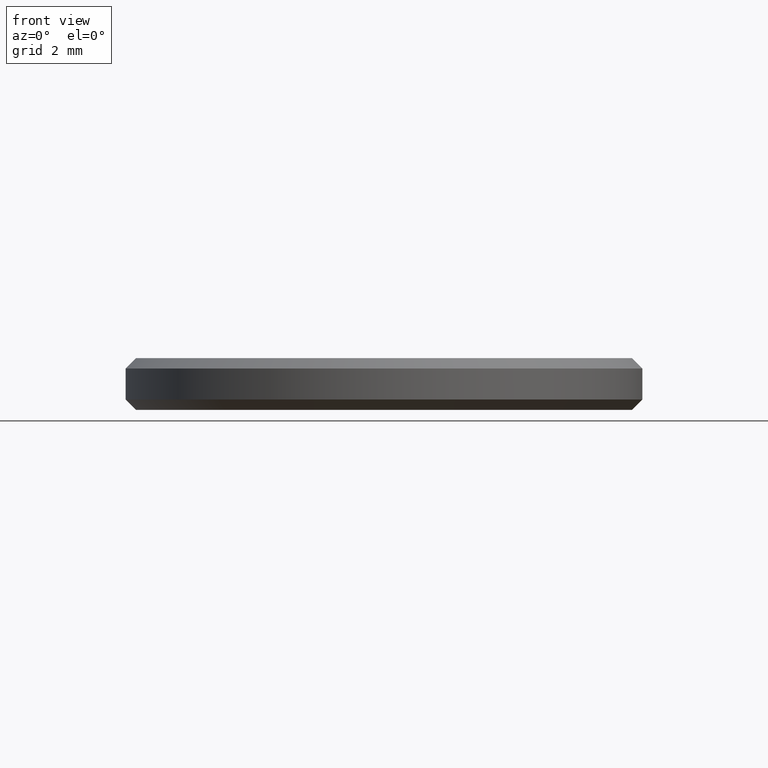
[diagram: clean part render]
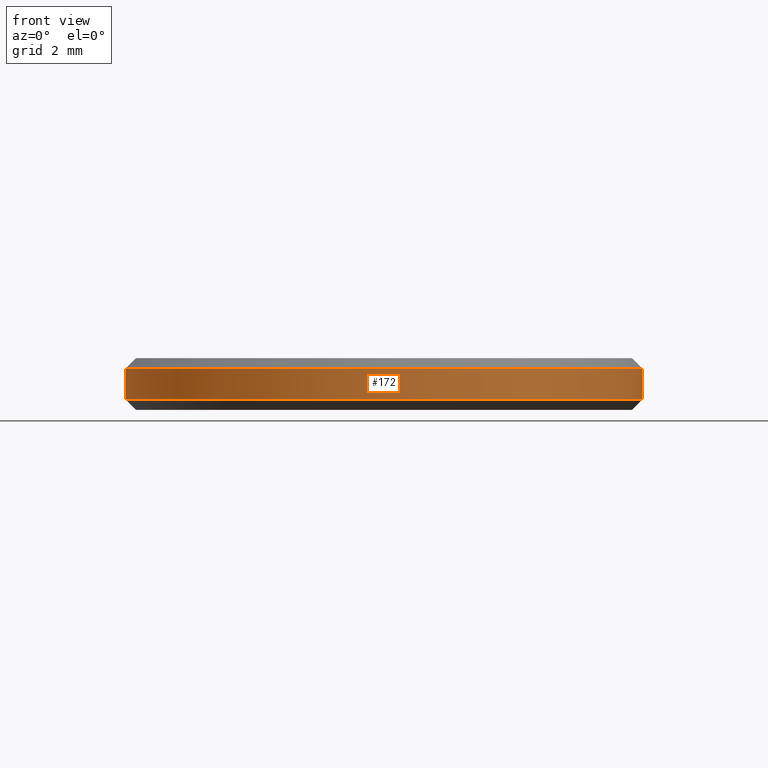
[diagram: same view with one face highlighted and labeled with its STEP entity id]
A machine part, front view. The second image highlights one B-rep face of the part: STEP entity #172.
In plain terms, the highlighted cylindrical surface (partial cylindrical patch) has radius 5 mm, axis along (-0, -0, -1).
Its self-contained STEP definition (entity closure, byte-faithful):
#3 = AXIS2_PLACEMENT_3D ( 'NONE', #187, #182, #12 ) ;
#12 = DIRECTION ( 'NONE',  ( 1.000000000000000000, 0.000000000000000000, 0.000000000000000000 ) ) ;
#18 = VECTOR ( 'NONE', #201, 1000.000000000000000 ) ;
#24 = ORIENTED_EDGE ( 'NONE', *, *, #195, .F. ) ;
#26 = VERTEX_POINT ( 'NONE', #173 ) ;
#48 = VERTEX_POINT ( 'NONE', #198 ) ;
#50 = AXIS2_PLACEMENT_3D ( 'NONE', #217, #212, #204 ) ;
#57 = CARTESIAN_POINT ( 'NONE',  ( 5.000000000000000000, 6.123233995736766282E-16, 1.000000000000000000 ) ) ;
#61 = DIRECTION ( 'NONE',  ( 0.000000000000000000, 0.000000000000000000, -1.000000000000000000 ) ) ;
#65 = ORIENTED_EDGE ( 'NONE', *, *, #239, .T. ) ;
#73 = DIRECTION ( 'NONE',  ( 1.000000000000000000, 0.000000000000000000, 0.000000000000000000 ) ) ;
#75 = FACE_OUTER_BOUND ( 'NONE', #191, .T. ) ;
#78 = ORIENTED_EDGE ( 'NONE', *, *, #224, .T. ) ;
#98 = AXIS2_PLACEMENT_3D ( 'NONE', #163, #61, #73 ) ;
#122 = VERTEX_POINT ( 'NONE', #126 ) ;
#126 = CARTESIAN_POINT ( 'NONE',  ( 5.000000000000000000, 6.123233995736766282E-16, 0.8000000000000012657 ) ) ;
#128 = DIRECTION ( 'NONE',  ( -0.000000000000000000, -0.000000000000000000, -1.000000000000000000 ) ) ;
#133 = CARTESIAN_POINT ( 'NONE',  ( -5.000000000000000000, 0.000000000000000000, 1.000000000000000000 ) ) ;
#143 = CIRCLE ( 'NONE', #98, 5.000000000000000000 ) ;
#147 = VECTOR ( 'NONE', #128, 1000.000000000000000 ) ;
#148 = CYLINDRICAL_SURFACE ( 'NONE', #50, 5.000000000000000000 ) ;
#150 = LINE ( 'NONE', #133, #18 ) ;
#155 = CIRCLE ( 'NONE', #3, 5.000000000000000000 ) ;
#156 = VERTEX_POINT ( 'NONE', #165 ) ;
#163 = CARTESIAN_POINT ( 'NONE',  ( 0.000000000000000000, 0.000000000000000000, 0.8000000000000012657 ) ) ;
#165 = CARTESIAN_POINT ( 'NONE',  ( 5.000000000000000000, 6.123233995736766282E-16, 0.1999999999999996503 ) ) ;
#172 = ADVANCED_FACE ( 'NONE', ( #75 ), #148, .T. ) ;
#173 = CARTESIAN_POINT ( 'NONE',  ( -5.000000000000000000, 0.000000000000000000, 0.8000000000000012657 ) ) ;
#176 = ORIENTED_EDGE ( 'NONE', *, *, #222, .T. ) ;
#182 = DIRECTION ( 'NONE',  ( -0.000000000000000000, -0.000000000000000000, 1.000000000000000000 ) ) ;
#187 = CARTESIAN_POINT ( 'NONE',  ( 0.000000000000000000, 0.000000000000000000, 0.1999999999999996503 ) ) ;
#191 = EDGE_LOOP ( 'NONE', ( #24, #65, #176, #78 ) ) ;
#195 = EDGE_CURVE ( 'NONE', #122, #156, #240, .T. ) ;
#198 = CARTESIAN_POINT ( 'NONE',  ( -5.000000000000000000, 0.000000000000000000, 0.1999999999999996503 ) ) ;
#201 = DIRECTION ( 'NONE',  ( -0.000000000000000000, -0.000000000000000000, -1.000000000000000000 ) ) ;
#204 = DIRECTION ( 'NONE',  ( -1.000000000000000000, 0.000000000000000000, 0.000000000000000000 ) ) ;
#212 = DIRECTION ( 'NONE',  ( -0.000000000000000000, -0.000000000000000000, -1.000000000000000000 ) ) ;
#217 = CARTESIAN_POINT ( 'NONE',  ( 0.000000000000000000, 0.000000000000000000, 1.000000000000000000 ) ) ;
#222 = EDGE_CURVE ( 'NONE', #26, #48, #150, .T. ) ;
#224 = EDGE_CURVE ( 'NONE', #48, #156, #155, .T. ) ;
#239 = EDGE_CURVE ( 'NONE', #122, #26, #143, .T. ) ;
#240 = LINE ( 'NONE', #57, #147 ) ;